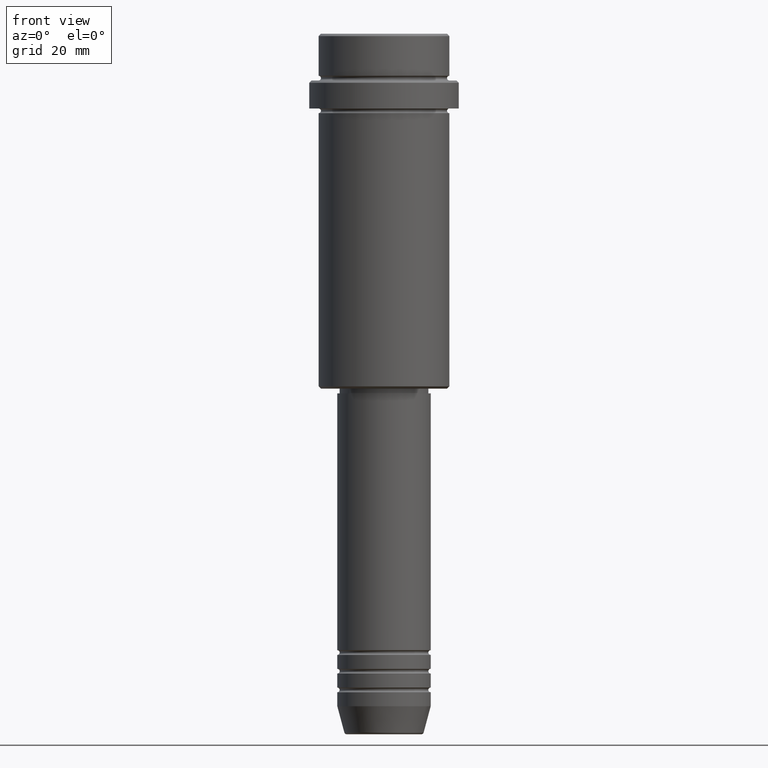
[diagram: clean part render]
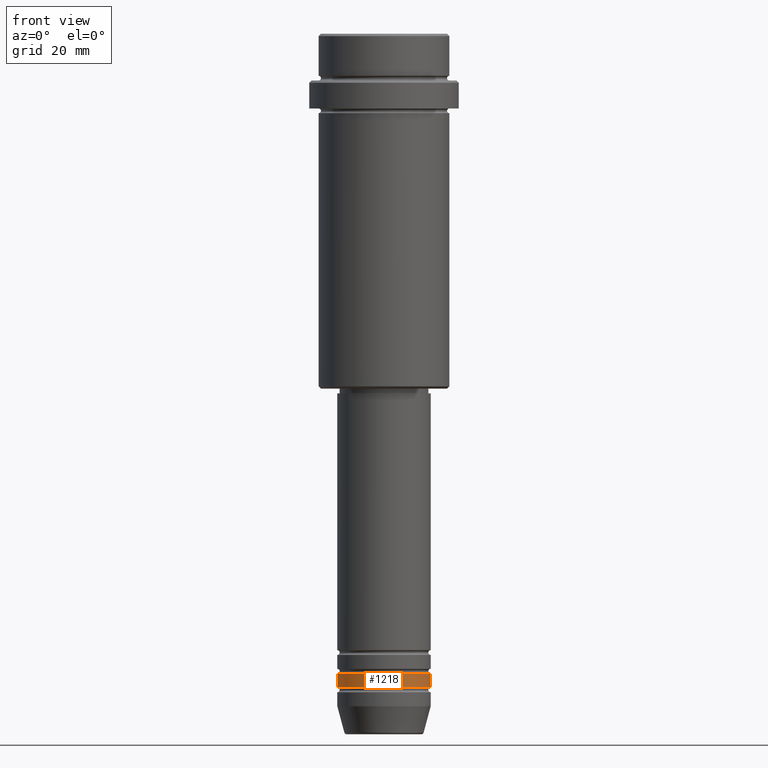
[diagram: same view with one face highlighted and labeled with its STEP entity id]
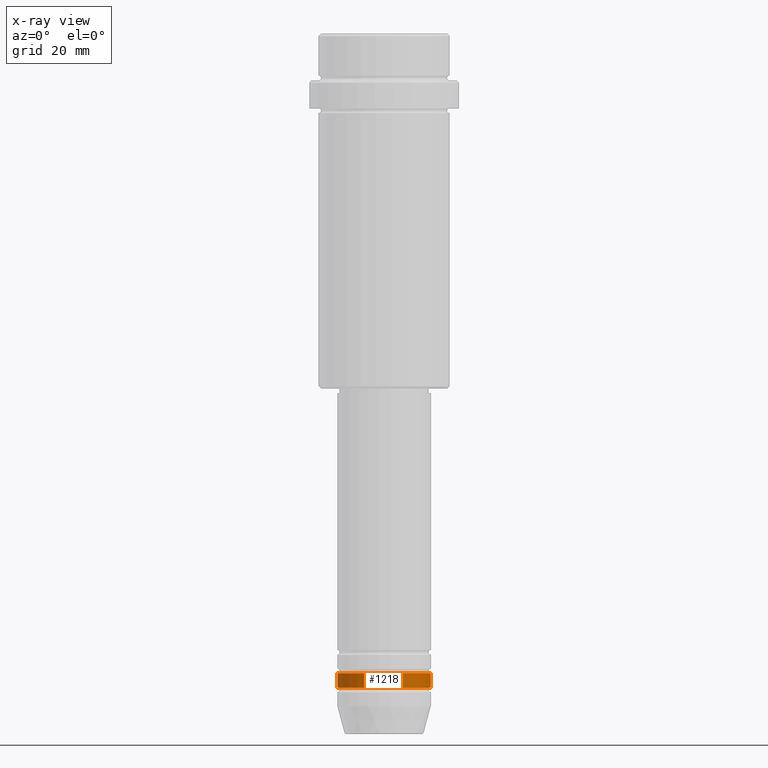
[diagram: x-ray of the same camera — body ghosted, the highlighted face saturated]
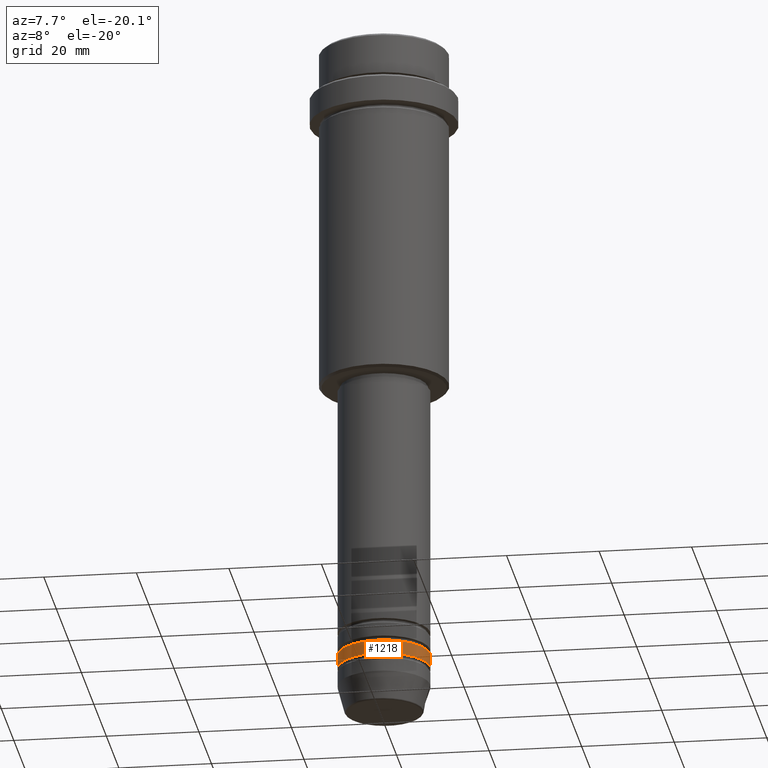
[diagram: same view with one face highlighted and labeled with its STEP entity id]
A machine part, front view. The second image highlights one B-rep face of the part: STEP entity #1218.
The next image is the same camera in x-ray: the body ghosted, the highlighted face saturated — about 0% of this face is hidden behind the body in this view.
A second angle (auxiliary view) of the same face is appended — the face is thin or edge-on in the first view.
In plain terms, the highlighted cylindrical surface (partial cylindrical patch) has radius 10 mm, axis along (-0, -0, 1).
Its self-contained STEP definition (entity closure, byte-faithful):
#23 = VERTEX_POINT ( 'NONE', #140 ) ;
#44 = ORIENTED_EDGE ( 'NONE', *, *, #1371, .F. ) ;
#66 = EDGE_CURVE ( 'NONE', #319, #442, #1238, .T. ) ;
#103 = EDGE_LOOP ( 'NONE', ( #44, #868, #1184, #178 ) ) ;
#140 = CARTESIAN_POINT ( 'NONE',  ( -10.00000000000000000, 1.224646799147353256E-15, -136.9999999999998863 ) ) ;
#153 = CARTESIAN_POINT ( 'NONE',  ( 10.00000000000000000, 0.000000000000000000, -136.9999999999998863 ) ) ;
#156 = EDGE_CURVE ( 'NONE', #23, #442, #1087, .T. ) ;
#172 = CARTESIAN_POINT ( 'NONE',  ( 0.000000000000000000, 0.000000000000000000, -139.9999999999999147 ) ) ;
#178 = ORIENTED_EDGE ( 'NONE', *, *, #156, .F. ) ;
#205 = CARTESIAN_POINT ( 'NONE',  ( 10.00000000000000000, 0.000000000000000000, -139.9999999999999147 ) ) ;
#319 = VERTEX_POINT ( 'NONE', #205 ) ;
#341 = CARTESIAN_POINT ( 'NONE',  ( -10.00000000000000000, 1.224646799147353256E-15, 0.000000000000000000 ) ) ;
#438 = CARTESIAN_POINT ( 'NONE',  ( 0.000000000000000000, 0.000000000000000000, 0.000000000000000000 ) ) ;
#442 = VERTEX_POINT ( 'NONE', #153 ) ;
#555 = CYLINDRICAL_SURFACE ( 'NONE', #676, 10.00000000000000000 ) ;
#562 = VERTEX_POINT ( 'NONE', #1073 ) ;
#636 = FACE_OUTER_BOUND ( 'NONE', #103, .T. ) ;
#652 = DIRECTION ( 'NONE',  ( -0.000000000000000000, -0.000000000000000000, 1.000000000000000000 ) ) ;
#676 = AXIS2_PLACEMENT_3D ( 'NONE', #438, #652, #975 ) ;
#699 = CARTESIAN_POINT ( 'NONE',  ( 10.00000000000000000, 0.000000000000000000, 0.000000000000000000 ) ) ;
#764 = CIRCLE ( 'NONE', #1242, 10.00000000000000000 ) ;
#857 = VECTOR ( 'NONE', #1049, 1000.000000000000000 ) ;
#868 = ORIENTED_EDGE ( 'NONE', *, *, #978, .T. ) ;
#944 = LINE ( 'NONE', #341, #857 ) ;
#975 = DIRECTION ( 'NONE',  ( 1.000000000000000000, 0.000000000000000000, 0.000000000000000000 ) ) ;
#978 = EDGE_CURVE ( 'NONE', #562, #319, #764, .T. ) ;
#1027 = DIRECTION ( 'NONE',  ( -0.000000000000000000, -0.000000000000000000, 1.000000000000000000 ) ) ;
#1049 = DIRECTION ( 'NONE',  ( -0.000000000000000000, -0.000000000000000000, 1.000000000000000000 ) ) ;
#1073 = CARTESIAN_POINT ( 'NONE',  ( -10.00000000000000000, 1.224646799147353256E-15, -139.9999999999999147 ) ) ;
#1087 = CIRCLE ( 'NONE', #1354, 10.00000000000000000 ) ;
#1184 = ORIENTED_EDGE ( 'NONE', *, *, #66, .T. ) ;
#1218 = ADVANCED_FACE ( 'NONE', ( #636 ), #555, .T. ) ;
#1238 = LINE ( 'NONE', #699, #1259 ) ;
#1242 = AXIS2_PLACEMENT_3D ( 'NONE', #172, #1378, #1394 ) ;
#1259 = VECTOR ( 'NONE', #1027, 1000.000000000000000 ) ;
#1267 = DIRECTION ( 'NONE',  ( -0.000000000000000000, -0.000000000000000000, 1.000000000000000000 ) ) ;
#1278 = DIRECTION ( 'NONE',  ( 1.000000000000000000, 0.000000000000000000, 0.000000000000000000 ) ) ;
#1354 = AXIS2_PLACEMENT_3D ( 'NONE', #1391, #1267, #1278 ) ;
#1371 = EDGE_CURVE ( 'NONE', #562, #23, #944, .T. ) ;
#1378 = DIRECTION ( 'NONE',  ( -0.000000000000000000, -0.000000000000000000, 1.000000000000000000 ) ) ;
#1391 = CARTESIAN_POINT ( 'NONE',  ( 0.000000000000000000, 0.000000000000000000, -136.9999999999998863 ) ) ;
#1394 = DIRECTION ( 'NONE',  ( 1.000000000000000000, 0.000000000000000000, 0.000000000000000000 ) ) ;